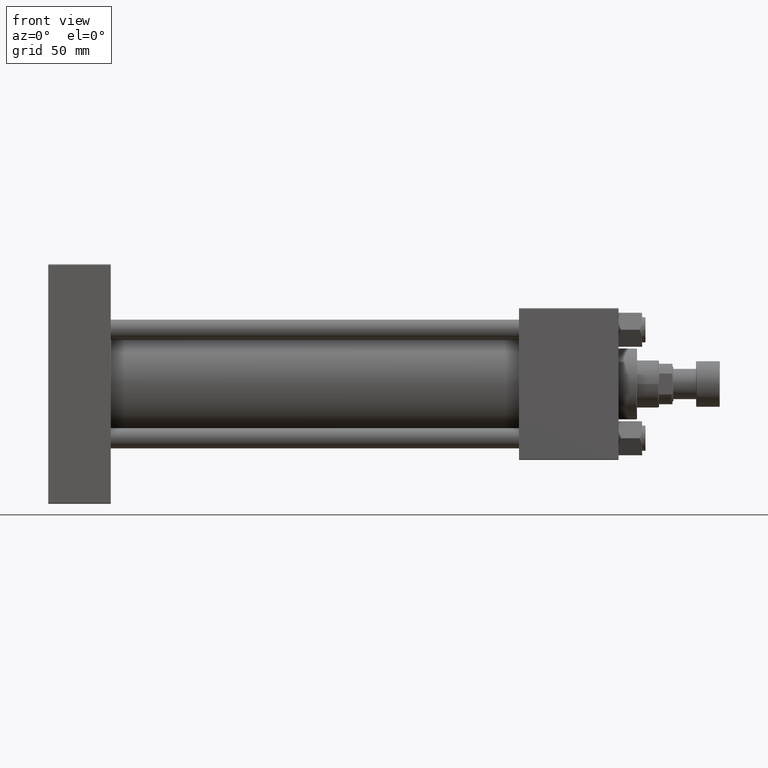
[diagram: clean part render]
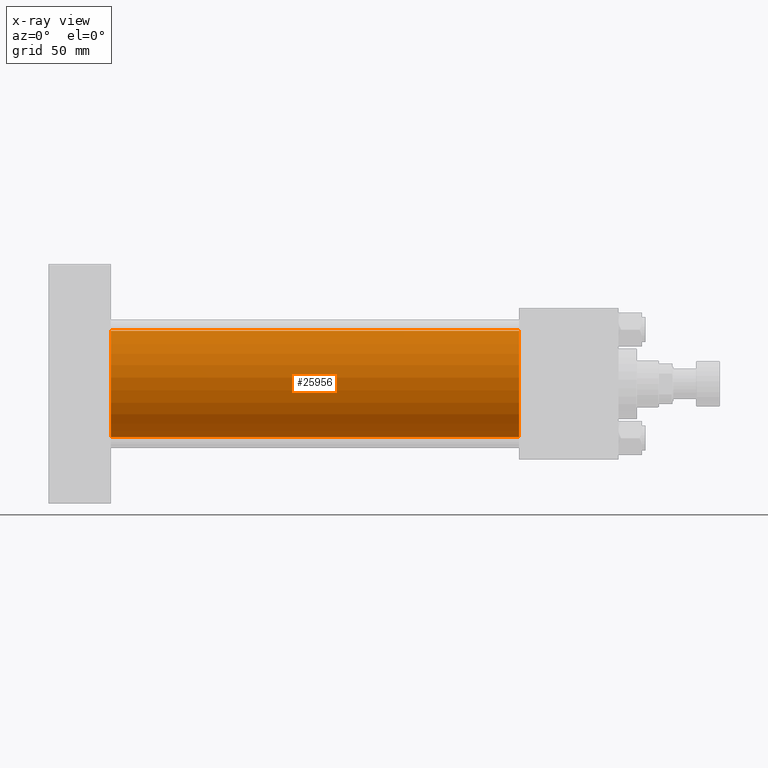
[diagram: x-ray — body ghosted, one internal face saturated and labeled with its STEP entity id]
A machine part, front view, then the same camera in x-ray: the body is ghosted and one INTERNAL B-rep face — a face not visible from any outside direction — is saturated and labeled: STEP entity #25956.
In plain terms, the highlighted cylindrical surface (partial cylindrical patch) has radius 31.5 mm, axis along (-1, -0, -0).
Its self-contained STEP definition (entity closure, byte-faithful):
#79 = FACE_OUTER_BOUND ( 'NONE', #33107, .T. ) ;
#1897 = CIRCLE ( 'NONE', #41829, 31.50000000000000000 ) ;
#2423 = EDGE_CURVE ( 'NONE', #7022, #17161, #1897, .T. ) ;
#4729 = CARTESIAN_POINT ( 'NONE',  ( 278.9999999999999432, -2.602085213965210642E-15, 31.50000000000000000 ) ) ;
#7022 = VERTEX_POINT ( 'NONE', #4729 ) ;
#9048 = DIRECTION ( 'NONE',  ( -1.000000000000000000, -0.000000000000000000, -0.000000000000000000 ) ) ;
#9311 = LINE ( 'NONE', #25526, #37502 ) ;
#12940 = VERTEX_POINT ( 'NONE', #26973 ) ;
#16305 = CYLINDRICAL_SURFACE ( 'NONE', #23208, 31.50000000000000000 ) ;
#16403 = DIRECTION ( 'NONE',  ( 1.000000000000000000, 0.000000000000000000, 0.000000000000000000 ) ) ;
#17161 = VERTEX_POINT ( 'NONE', #20118 ) ;
#19140 = EDGE_CURVE ( 'NONE', #7022, #12940, #9311, .T. ) ;
#19764 = CARTESIAN_POINT ( 'NONE',  ( 278.9999999999999432, -2.602085213965210642E-15, 0.000000000000000000 ) ) ;
#20118 = CARTESIAN_POINT ( 'NONE',  ( 278.9999999999999432, 1.255552203348951850E-15, -31.50000000000000000 ) ) ;
#21411 = CARTESIAN_POINT ( 'NONE',  ( 278.9999999999999432, 1.255552203348951850E-15, -31.50000000000000000 ) ) ;
#22000 = EDGE_CURVE ( 'NONE', #17161, #48693, #42647, .T. ) ;
#22232 = ORIENTED_EDGE ( 'NONE', *, *, #2423, .T. ) ;
#22449 = ORIENTED_EDGE ( 'NONE', *, *, #22000, .T. ) ;
#23208 = AXIS2_PLACEMENT_3D ( 'NONE', #19764, #35987, #52169 ) ;
#23379 = CARTESIAN_POINT ( 'NONE',  ( 37.00000000000000000, 1.255552203348951850E-15, -31.50000000000000000 ) ) ;
#25526 = CARTESIAN_POINT ( 'NONE',  ( 278.9999999999999432, -2.602085213965210642E-15, 31.50000000000000000 ) ) ;
#25733 = VECTOR ( 'NONE', #49828, 1000.000000000000000 ) ;
#25956 = ADVANCED_FACE ( 'NONE', ( #79 ), #16305, .F. ) ;
#26647 = AXIS2_PLACEMENT_3D ( 'NONE', #47335, #28174, #27925 ) ;
#26973 = CARTESIAN_POINT ( 'NONE',  ( 37.00000000000000000, -2.602085213965210642E-15, 31.50000000000000000 ) ) ;
#27925 = DIRECTION ( 'NONE',  ( 0.000000000000000000, 0.000000000000000000, -1.000000000000000000 ) ) ;
#28174 = DIRECTION ( 'NONE',  ( 1.000000000000000000, 0.000000000000000000, 0.000000000000000000 ) ) ;
#28870 = ORIENTED_EDGE ( 'NONE', *, *, #38719, .F. ) ;
#32344 = CARTESIAN_POINT ( 'NONE',  ( 278.9999999999999432, -2.602085213965210642E-15, 0.000000000000000000 ) ) ;
#33107 = EDGE_LOOP ( 'NONE', ( #22232, #22449, #28870, #48242 ) ) ;
#35977 = CIRCLE ( 'NONE', #26647, 31.50000000000000000 ) ;
#35987 = DIRECTION ( 'NONE',  ( -1.000000000000000000, -0.000000000000000000, -0.000000000000000000 ) ) ;
#37502 = VECTOR ( 'NONE', #9048, 1000.000000000000000 ) ;
#38719 = EDGE_CURVE ( 'NONE', #12940, #48693, #35977, .T. ) ;
#40842 = DIRECTION ( 'NONE',  ( 0.000000000000000000, 0.000000000000000000, -1.000000000000000000 ) ) ;
#41829 = AXIS2_PLACEMENT_3D ( 'NONE', #32344, #16403, #40842 ) ;
#42647 = LINE ( 'NONE', #21411, #25733 ) ;
#47335 = CARTESIAN_POINT ( 'NONE',  ( 37.00000000000000000, -2.602085213965210642E-15, 0.000000000000000000 ) ) ;
#48242 = ORIENTED_EDGE ( 'NONE', *, *, #19140, .F. ) ;
#48693 = VERTEX_POINT ( 'NONE', #23379 ) ;
#49828 = DIRECTION ( 'NONE',  ( -1.000000000000000000, -0.000000000000000000, -0.000000000000000000 ) ) ;
#52169 = DIRECTION ( 'NONE',  ( 0.000000000000000000, 0.000000000000000000, 1.000000000000000000 ) ) ;